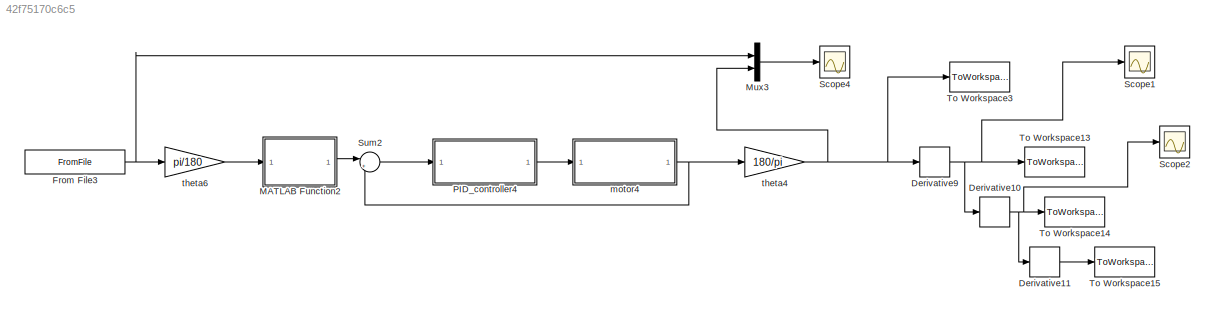
MODEL slx_42f75170c6c5
KIND model
CONFIG AbsTol = auto
CONFIG EnableMultiTasking = off
CONFIG FixedStep = 4.9578e-05
CONFIG MaxStep = auto
CONFIG MinStep = auto
CONFIG RelTol = 1e-3
CONFIG SampleTimeConstraint = Unconstrained
CONFIG SolverName = ode5
CONFIG StartTime = 0.0
CONFIG StopTime = 0.0019831
BLOCK [Derivative] Derivative10
BLOCK [Derivative] Derivative11
BLOCK [Derivative] Derivative9
BLOCK [FromFile] From File3
  FileName = theta4set.mat
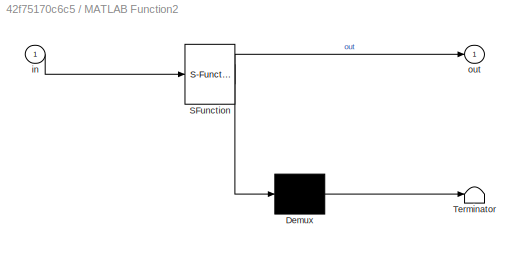
BLOCK [SubSystem] MATLAB Function2
  ErrorFcn = Stateflow.Translate.translate
  PermitHierarchicalResolution = ExplicitOnly
  Ports = [1, 1]
  RequestExecContextInheritance = off
  SFBlockType = MATLAB Function
  TreatAsAtomicUnit = on
BLOCK [Demux] MATLAB Function2/ Demux 
  Outputs = 1
  Ports = [1, 1]
BLOCK [S-Function] MATLAB Function2/ SFunction 
  EnableBusSupport = on
  FunctionName = sf_sfun
  PortCounts = [1 2]
  Ports = [1, 2]
  SFcnIsStateOwnerBlock = off
  SFunctionDeploymentMode = off
  Tag = Stateflow S-Function 3
BLOCK [Terminator] MATLAB Function2/ Terminator 
BLOCK [Inport] MATLAB Function2/in
BLOCK [Outport] MATLAB Function2/out
  VectorParamsAs1DForOutWhenUnconnected = off
BLOCK [Mux] Mux3
  DisplayOption = bar
  Inputs = 2
  Ports = [2, 1]
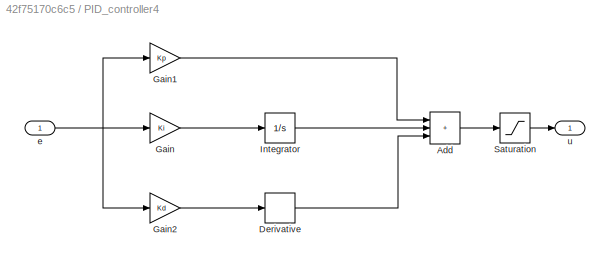
BLOCK [SubSystem] PID_controller4
  Ports = [1, 1]
  RequestExecContextInheritance = off
BLOCK [Sum] PID_controller4/Add
  IconShape = rectangular
  Inputs = +++
  Ports = [3, 1]
BLOCK [Derivative] PID_controller4/Derivative
BLOCK [Gain] PID_controller4/Gain
  Gain = Ki
BLOCK [Gain] PID_controller4/Gain1
  Gain = Kp
BLOCK [Gain] PID_controller4/Gain2
  Gain = Kd
BLOCK [Integrator] PID_controller4/Integrator
  Ports = [1, 1]
BLOCK [Saturate] PID_controller4/Saturation
  LowerLimit = -300
  UpperLimit = 300
BLOCK [Inport] PID_controller4/e
BLOCK [Outport] PID_controller4/u
  VectorParamsAs1DForOutWhenUnconnected = off
BLOCK [Scope] Scope1
  Floating = off
  NumInputPorts = 1
  Ports = [1]
  ScopeSpecificationString = Simulink.scopes.TimeScopeBlockCfg('CurrentConfiguration', extmgr.ConfigurationSet(extmgr.Configuration('Core','General UI',true),extmgr.Configuration('Core','Source UI',true),extmgr.Configuration('Sources','WiredSimulink',true,'DataLoggingVariableName','ScopeData1'),extmgr.Configuration('Visuals','Time Domain',true,'SerializedDisplays',{struct('MinYLimReal','-1.33419','MaxYLimReal','9.38413','YLab...<+1450ch>
BLOCK [Scope] Scope2
  Floating = off
  NumInputPorts = 1
  Ports = [1]
  ScopeSpecificationString = Simulink.scopes.TimeScopeBlockCfg('CurrentConfiguration', extmgr.ConfigurationSet(extmgr.Configuration('Core','General UI',true),extmgr.Configuration('Core','Source UI',true),extmgr.Configuration('Sources','WiredSimulink',true,'DataLoggingVariableName','ScopeData2'),extmgr.Configuration('Visuals','Time Domain',true,'SerializedDisplays',{struct('MinYLimReal','-12.51257','MaxYLimReal','12.55205','YL...<+1457ch>
BLOCK [Scope] Scope4
  Floating = off
  NumInputPorts = 1
  Ports = [1]
  ScopeSpecificationString = Simulink.scopes.TimeScopeBlockCfg('CurrentConfiguration', extmgr.ConfigurationSet(extmgr.Configuration('Core','General UI',true),extmgr.Configuration('Core','Source UI',true),extmgr.Configuration('Sources','WiredSimulink',true,'DataLoggingVariableName','ScopeData4'),extmgr.Configuration('Visuals','Time Domain',true,'SerializedDisplays',{struct('MinYLimReal','-18206328359633969310874319280291452021...<+1856ch>
BLOCK [Sum] Sum2
  Inputs = |+-
  Ports = [2, 1]
BLOCK [ToWorkspace] To Workspace13
  FixptAsFi = on
  MaxDataPoints = inf
  Ports = [1]
  SampleTime = -1
  VariableName = v_theta4out
BLOCK [ToWorkspace] To Workspace14
  FixptAsFi = on
  MaxDataPoints = inf
  Ports = [1]
  SampleTime = -1
  VariableName = a_theta4out
BLOCK [ToWorkspace] To Workspace15
  FixptAsFi = on
  MaxDataPoints = inf
  Ports = [1]
  SampleTime = -1
  VariableName = j_theta4out
BLOCK [ToWorkspace] To Workspace3
  FixptAsFi = on
  MaxDataPoints = inf
  Ports = [1]
  SampleTime = -1
  VariableName = q_theta4out
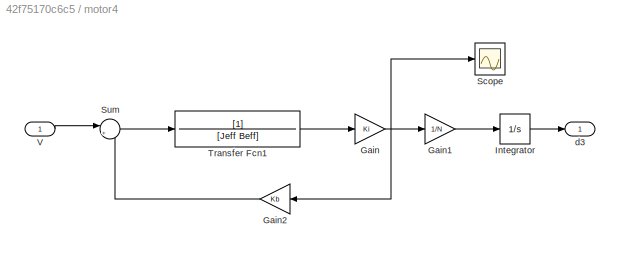
BLOCK [SubSystem] motor4
  Ports = [1, 1]
  RequestExecContextInheritance = off
BLOCK [Gain] motor4/Gain
  Gain = Ki
BLOCK [Gain] motor4/Gain1
  Gain = 1/N
BLOCK [Gain] motor4/Gain2
  Gain = Kb
BLOCK [Integrator] motor4/Integrator
  InitialCondition = 40.6737
  Ports = [1, 1]
BLOCK [Scope] motor4/Scope
  Floating = off
  NumInputPorts = 1
  Ports = [1]
  ScopeSpecificationString = Simulink.scopes.TimeScopeBlockCfg('CurrentConfiguration', extmgr.ConfigurationSet(extmgr.Configuration('Core','General UI',true),extmgr.Configuration('Core','Source UI',true),extmgr.Configuration('Sources','WiredSimulink',true,'DataLoggingVariableName','ScopeData2'),extmgr.Configuration('Visuals','Time Domain',true,'SerializedDisplays',{struct('MinYLimReal','-12.50988','MaxYLimReal','112.58894','Y...<+1373ch>
BLOCK [Sum] motor4/Sum
  Inputs = |+-
  Ports = [2, 1]
BLOCK [TransferFcn] motor4/Transfer Fcn1
  Denominator = [Jeff Beff]
BLOCK [Inport] motor4/V
BLOCK [Outport] motor4/d3
  VectorParamsAs1DForOutWhenUnconnected = off
BLOCK [Gain] theta4
  Gain = 180/pi
BLOCK [Gain] theta6
  Gain = pi/180
NET Derivative10:1 -> Derivative11:1, Scope2:1, To Workspace14:1
LINE Derivative11:1 -> To Workspace15:1
NET Derivative9:1 -> Derivative10:1, Scope1:1, To Workspace13:1
NET From File3:1 -> Mux3:1, theta6:1
LINE MATLAB Function2:1 -> Sum2:1
LINE Mux3:1 -> Scope4:1
LINE PID_controller4/Add:1 -> PID_controller4/Saturation:1
LINE PID_controller4/Derivative:1 -> PID_controller4/Add:3
LINE PID_controller4/Gain1:1 -> PID_controller4/Add:1
LINE PID_controller4/Gain2:1 -> PID_controller4/Derivative:1
LINE PID_controller4/Gain:1 -> PID_controller4/Integrator:1
LINE PID_controller4/Integrator:1 -> PID_controller4/Add:2
LINE PID_controller4/Saturation:1 -> PID_controller4/u:1
NET PID_controller4/e:1 -> PID_controller4/Gain1:1, PID_controller4/Gain2:1, PID_controller4/Gain:1
LINE PID_controller4:1 -> motor4:1
LINE Sum2:1 -> PID_controller4:1
LINE motor4/Gain1:1 -> motor4/Integrator:1
LINE motor4/Gain2:1 -> motor4/Sum:2
NET motor4/Gain:1 -> motor4/Gain1:1, motor4/Gain2:1, motor4/Scope:1
LINE motor4/Integrator:1 -> motor4/d3:1
LINE motor4/Sum:1 -> motor4/Transfer Fcn1:1
LINE motor4/Transfer Fcn1:1 -> motor4/Gain:1
LINE motor4/V:1 -> motor4/Sum:1
NET motor4:1 -> Sum2:2, theta4:1
NET theta4:1 -> Derivative9:1, Mux3:2, To Workspace3:1
LINE theta6:1 -> MATLAB Function2:1
note: NET lines group one-source signal fan-out (src -> all destinations, sorted); 1:1 wires keep LINE
CHART MATLAB Function2 states=1 transitions=1
  STATE_LABEL 'eML_blk_kernel()'
  STATE_LABEL 'SCRIPT:\nfunction out = HandleInput(in)\n\nout = in;\npersistent pre\nif isempty(pre)\n    pre = 0;\nend\n\nwhile (out - pre > 1.5*pi)\n    out = out - 2*pi;\nend\n\nwhile (out - pre < -1.5*pi)\n    out = out + 2*pi;\nend'
CHART  states=0 transitions=0
